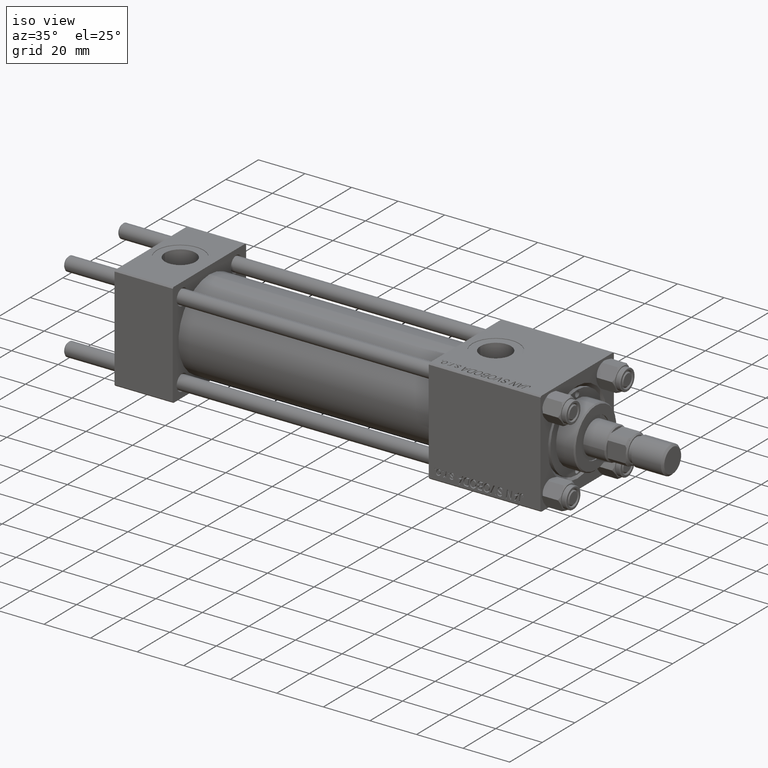
[diagram: clean part render]
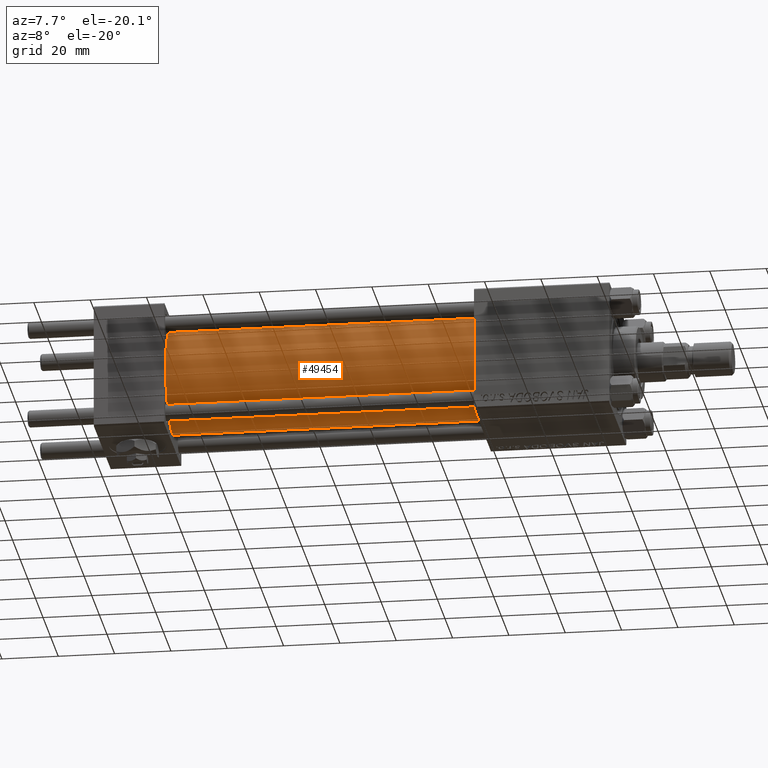
[diagram: tour spotlight — one face highlighted and labeled with its STEP entity id]
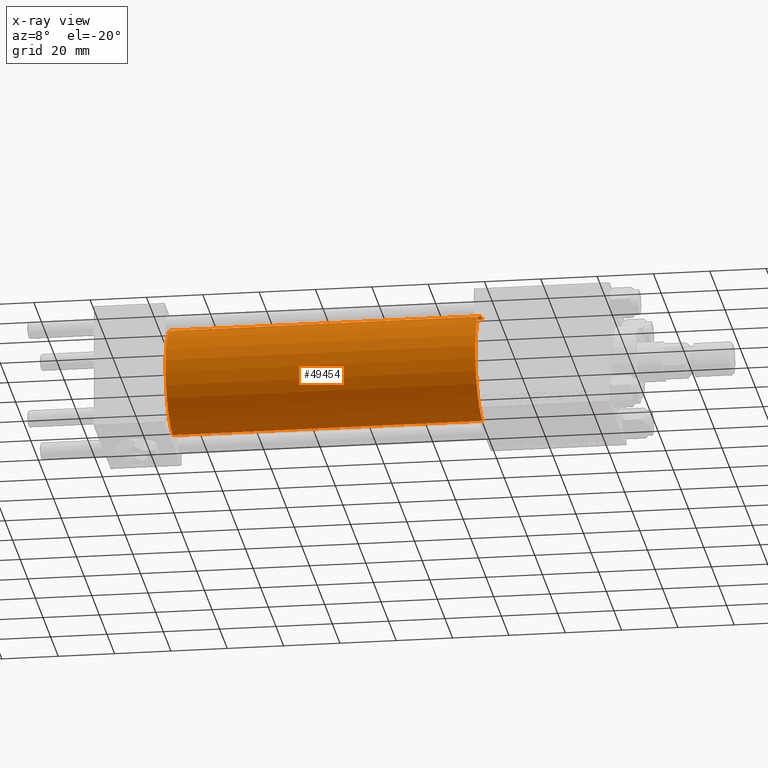
[diagram: x-ray of the same camera — body ghosted, this tour face saturated]
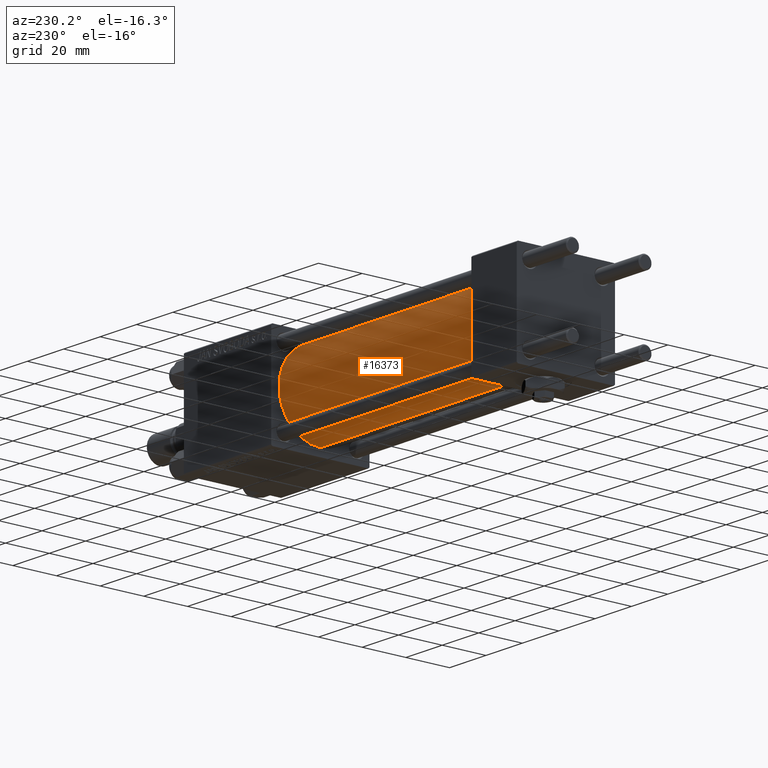
[diagram: tour spotlight — one face highlighted and labeled with its STEP entity id]
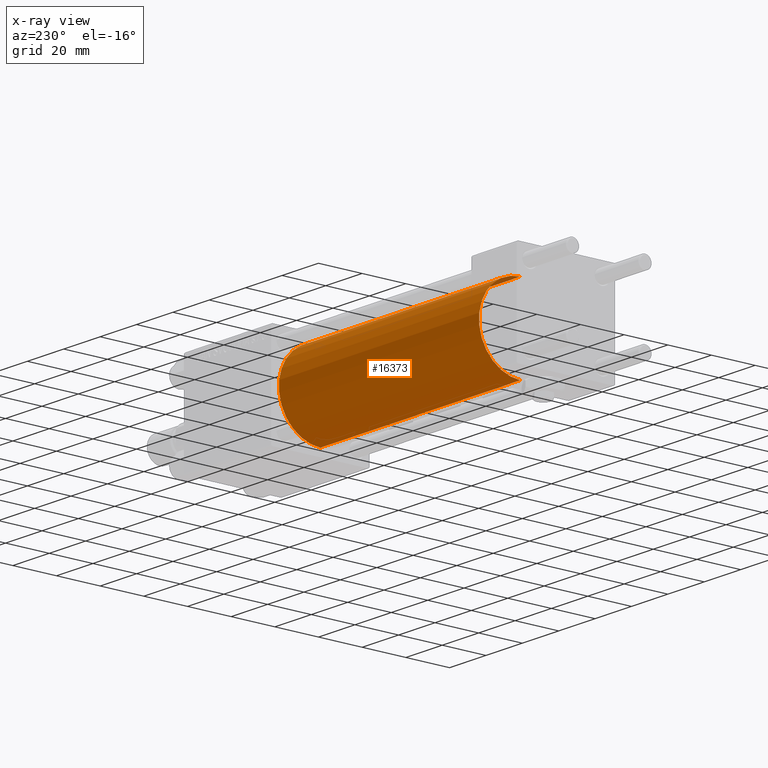
[diagram: x-ray of the same camera — body ghosted, this tour face saturated]
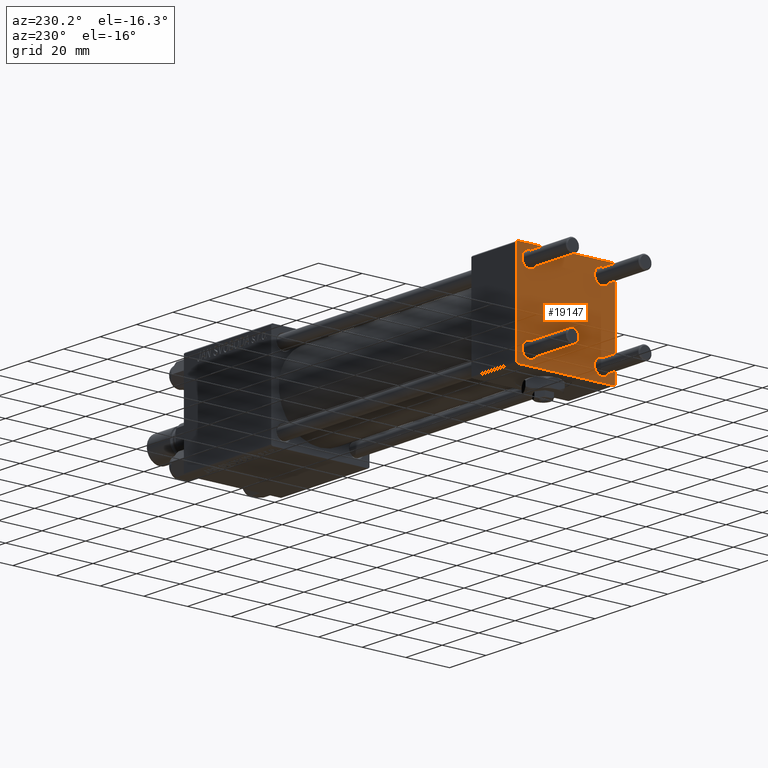
[diagram: tour spotlight — one face highlighted and labeled with its STEP entity id]
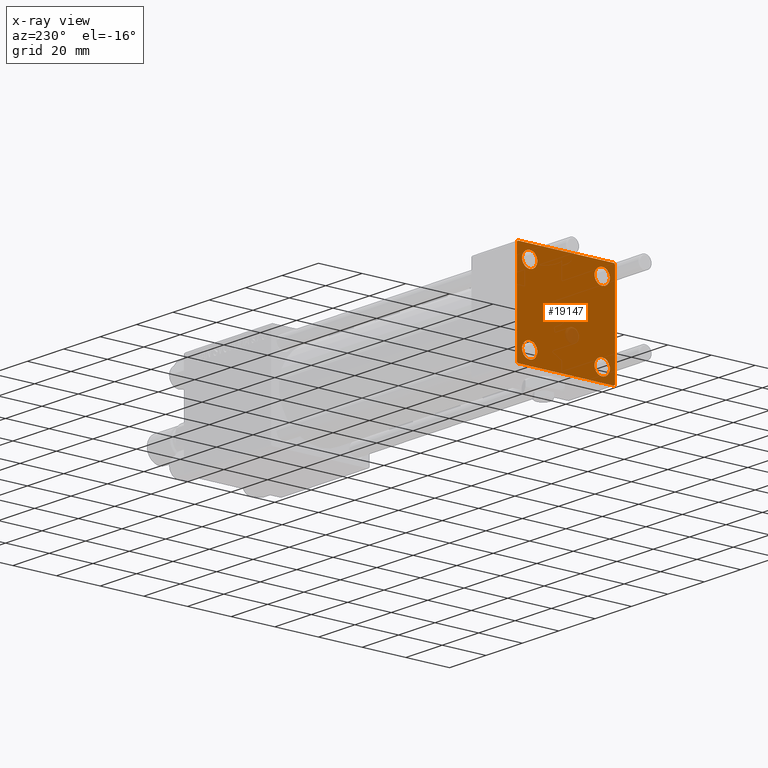
[diagram: x-ray of the same camera — body ghosted, this tour face saturated]
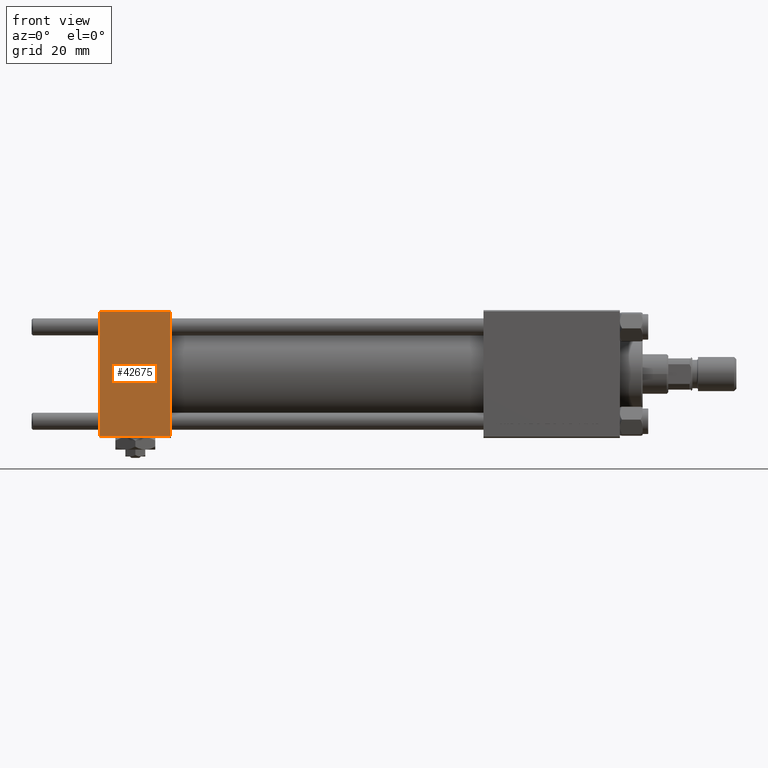
[diagram: tour spotlight — one face highlighted and labeled with its STEP entity id]
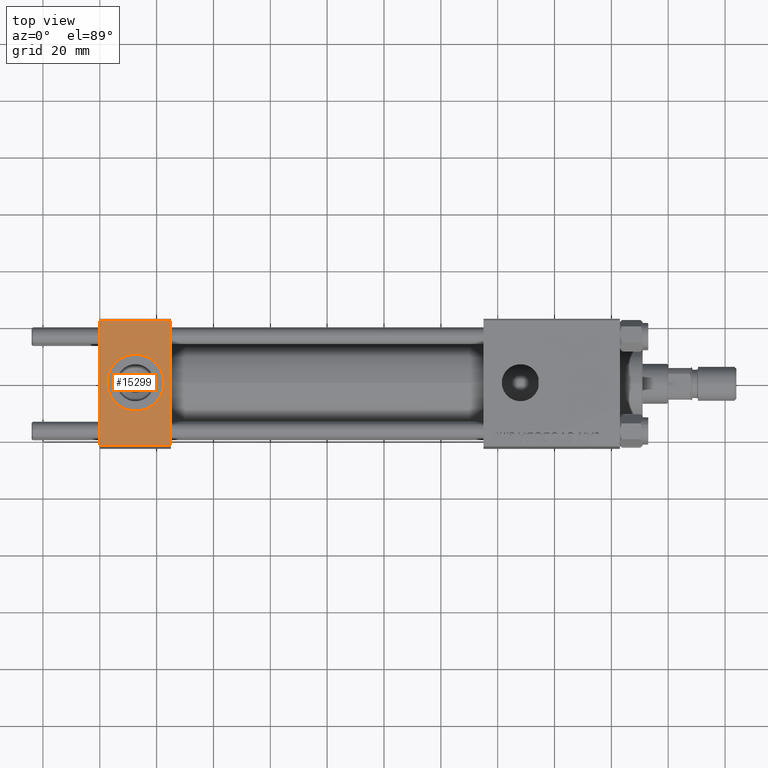
[diagram: tour spotlight — one face highlighted and labeled with its STEP entity id]
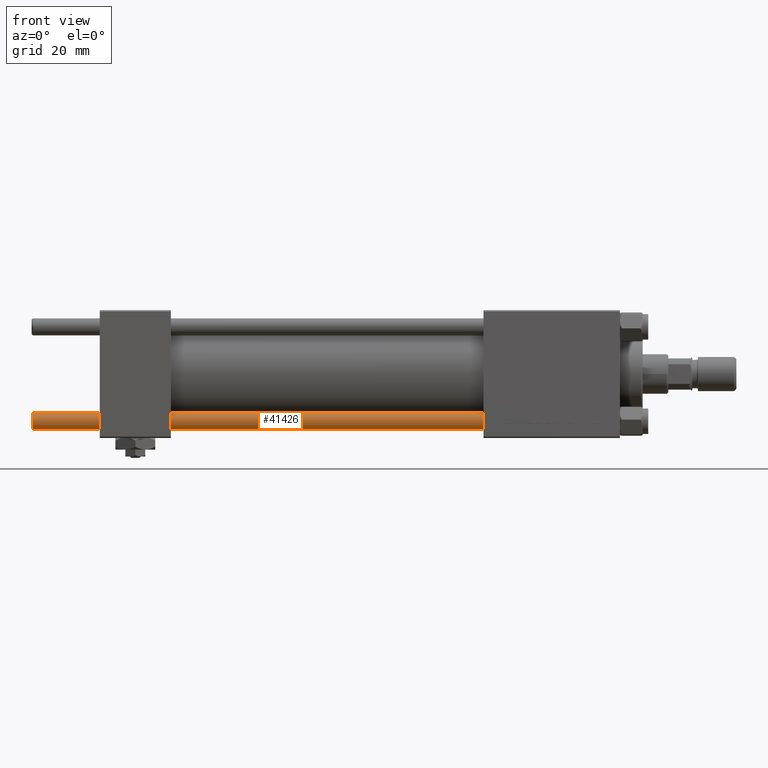
[diagram: tour spotlight — one face highlighted and labeled with its STEP entity id]
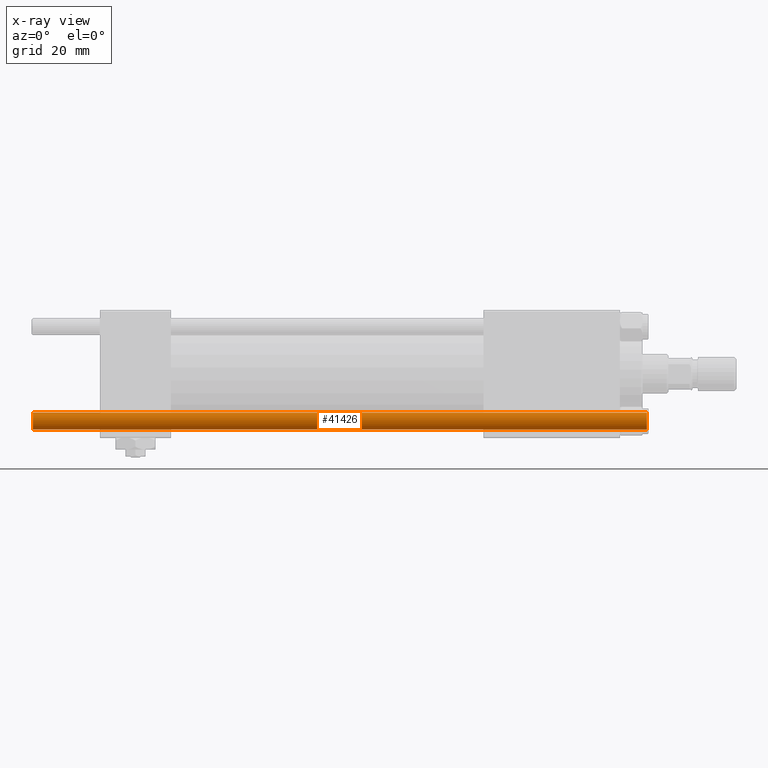
[diagram: x-ray of the same camera — body ghosted, this tour face saturated]
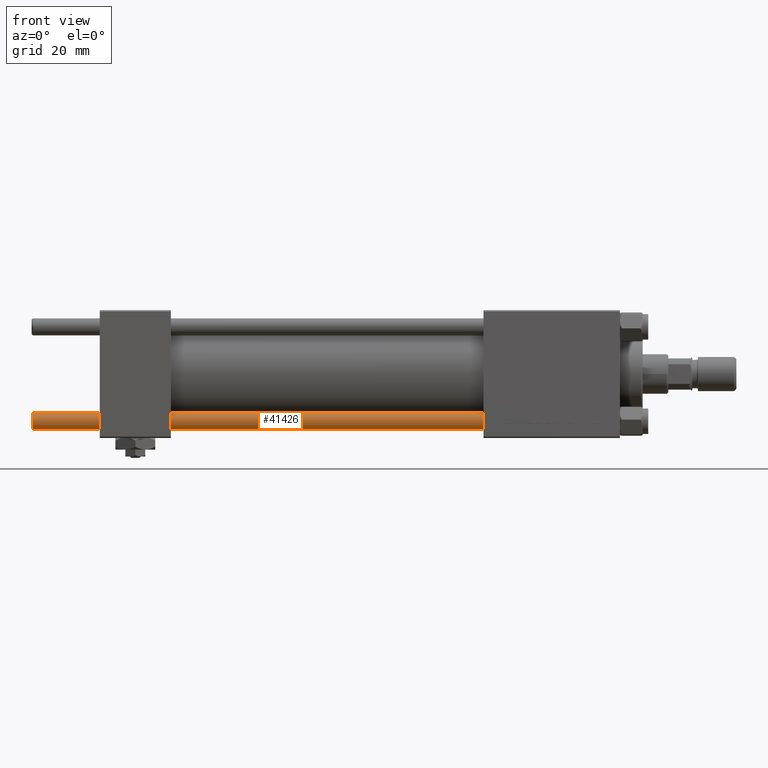
[diagram: tour spotlight — one face highlighted and labeled with its STEP entity id]
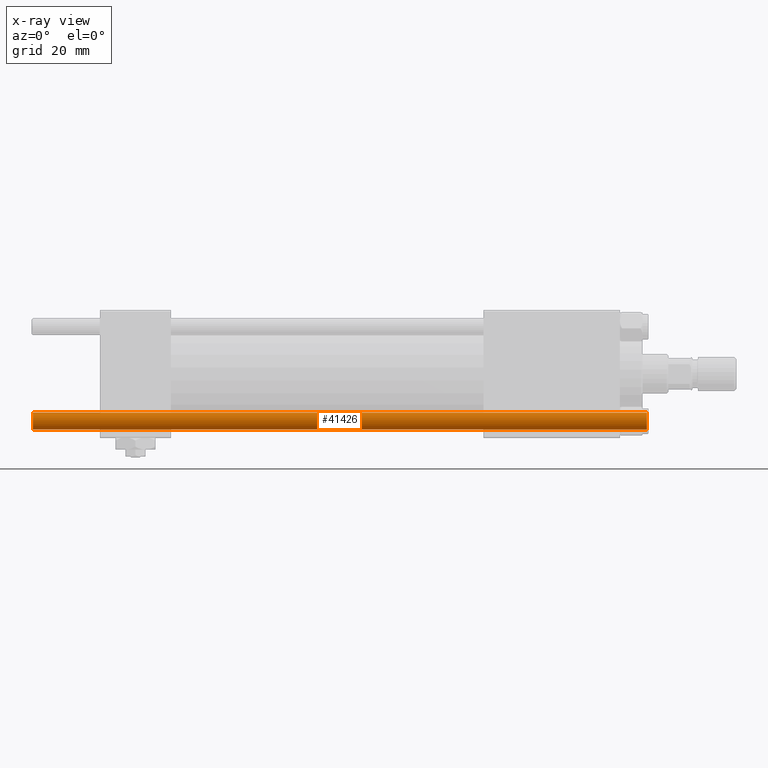
[diagram: x-ray of the same camera — body ghosted, this tour face saturated]
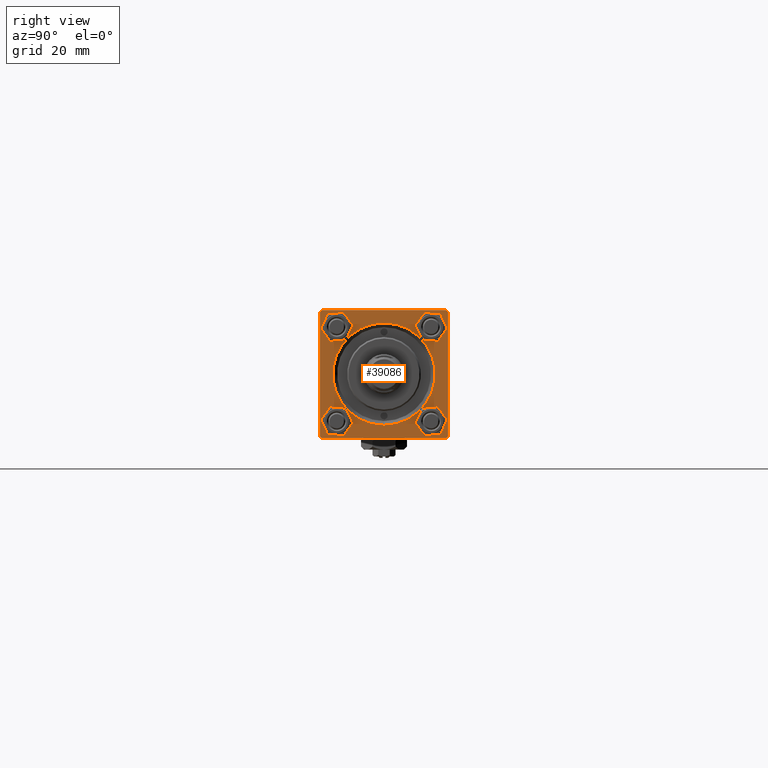
[diagram: tour spotlight — one face highlighted and labeled with its STEP entity id]
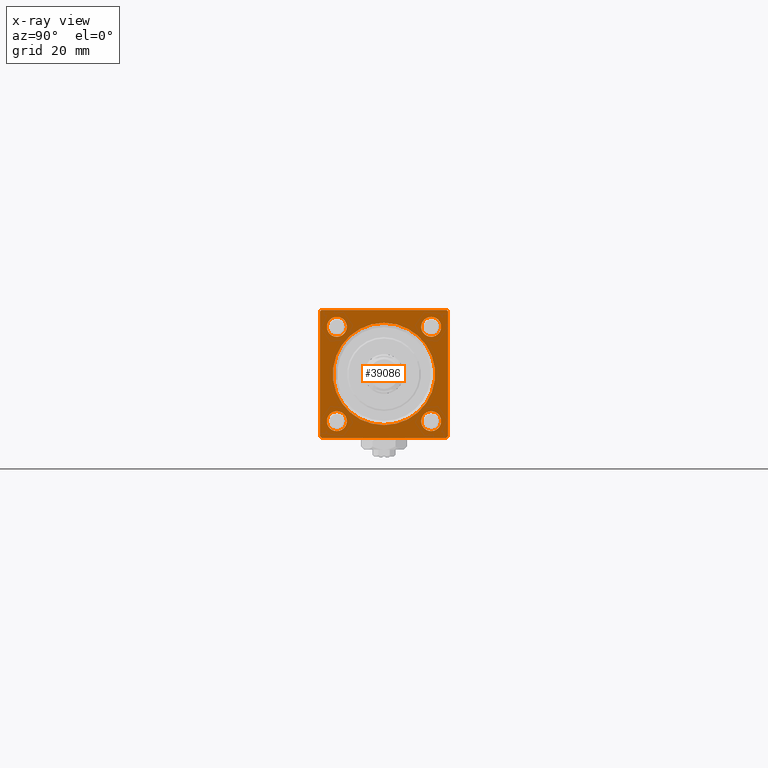
[diagram: x-ray of the same camera — body ghosted, this tour face saturated]
A machine part: a face-by-face anatomy tour. The part has 1204 B-rep faces; the first image is the clean iso view, then the 8 largest visible faces are spotlighted one at a time (largest first), each with its STEP entity span.

Face 1 — auxiliary view, entity #49454. An x-ray twin of the same camera follows (body ghosted, this face saturated) — the face is partly hidden behind the body. In plain terms, the highlighted cylindrical surface (partial cylindrical patch) has radius 19 mm, axis along (-1, -0, -0).
Definition (entity closure, byte-faithful):
#5 = DIRECTION ( 'NONE',  ( -1.000000000000000000, -0.000000000000000000, -0.000000000000000000 ) ) ;
#1421 = AXIS2_PLACEMENT_3D ( 'NONE', #28835, #4253, #7670 ) ;
#1800 = CARTESIAN_POINT ( 'NONE',  ( 24.99999999999999289, 0.000000000000000000, 19.00000000000000000 ) ) ;
#2765 = VECTOR ( 'NONE', #39707, 1000.000000000000000 ) ;
#3180 = DIRECTION ( 'NONE',  ( 1.000000000000000000, 0.000000000000000000, 0.000000000000000000 ) ) ;
#4253 = DIRECTION ( 'NONE',  ( -1.000000000000000000, -0.000000000000000000, -0.000000000000000000 ) ) ;
#7670 = DIRECTION ( 'NONE',  ( 0.000000000000000000, 0.000000000000000000, 1.000000000000000000 ) ) ;
#9911 = CIRCLE ( 'NONE', #33532, 19.00000000000000000 ) ;
#10340 = DIRECTION ( 'NONE',  ( 0.000000000000000000, 0.000000000000000000, 1.000000000000000000 ) ) ;
#11126 = ORIENTED_EDGE ( 'NONE', *, *, #14810, .T. ) ;
#11428 = ORIENTED_EDGE ( 'NONE', *, *, #20443, .T. ) ;
#14398 = VERTEX_POINT ( 'NONE', #26856 ) ;
#14810 = EDGE_CURVE ( 'NONE', #32911, #43458, #9911, .T. ) ;
#15940 = EDGE_LOOP ( 'NONE', ( #30637, #20082, #11428, #11126 ) ) ;
#16633 = CIRCLE ( 'NONE', #23377, 19.00000000000000000 ) ;
#18701 = EDGE_CURVE ( 'NONE', #51549, #43458, #20899, .T. ) ;
#20082 = ORIENTED_EDGE ( 'NONE', *, *, #49342, .F. ) ;
#20443 = EDGE_CURVE ( 'NONE', #14398, #32911, #39453, .T. ) ;
#20899 = LINE ( 'NONE', #44909, #32112 ) ;
#22058 = CARTESIAN_POINT ( 'NONE',  ( 24.99999999999999289, 2.326828918379970970E-15, -19.00000000000000000 ) ) ;
#23377 = AXIS2_PLACEMENT_3D ( 'NONE', #42839, #3180, #46526 ) ;
#26856 = CARTESIAN_POINT ( 'NONE',  ( 135.0000000000000000, 0.000000000000000000, 19.00000000000000000 ) ) ;
#28298 = CYLINDRICAL_SURFACE ( 'NONE', #1421, 19.00000000000000000 ) ;
#28835 = CARTESIAN_POINT ( 'NONE',  ( 135.0000000000000000, 0.000000000000000000, 0.000000000000000000 ) ) ;
#30637 = ORIENTED_EDGE ( 'NONE', *, *, #18701, .F. ) ;
#32112 = VECTOR ( 'NONE', #5, 1000.000000000000000 ) ;
#32911 = VERTEX_POINT ( 'NONE', #1800 ) ;
#33532 = AXIS2_PLACEMENT_3D ( 'NONE', #46521, #47044, #10340 ) ;
#35239 = CARTESIAN_POINT ( 'NONE',  ( 135.0000000000000000, 0.000000000000000000, 19.00000000000000000 ) ) ;
#39453 = LINE ( 'NONE', #35239, #2765 ) ;
#39707 = DIRECTION ( 'NONE',  ( -1.000000000000000000, -0.000000000000000000, -0.000000000000000000 ) ) ;
#42839 = CARTESIAN_POINT ( 'NONE',  ( 135.0000000000000000, 0.000000000000000000, 0.000000000000000000 ) ) ;
#43458 = VERTEX_POINT ( 'NONE', #22058 ) ;
#44909 = CARTESIAN_POINT ( 'NONE',  ( 135.0000000000000000, 2.326828918379970970E-15, -19.00000000000000000 ) ) ;
#44917 = FACE_OUTER_BOUND ( 'NONE', #15940, .T. ) ;
#46521 = CARTESIAN_POINT ( 'NONE',  ( 24.99999999999999289, 0.000000000000000000, 0.000000000000000000 ) ) ;
#46526 = DIRECTION ( 'NONE',  ( 0.000000000000000000, 0.000000000000000000, -1.000000000000000000 ) ) ;
#47044 = DIRECTION ( 'NONE',  ( 1.000000000000000000, -0.000000000000000000, 0.000000000000000000 ) ) ;
#47070 = CARTESIAN_POINT ( 'NONE',  ( 135.0000000000000000, 2.326828918379970970E-15, -19.00000000000000000 ) ) ;
#49342 = EDGE_CURVE ( 'NONE', #14398, #51549, #16633, .T. ) ;
#49454 = ADVANCED_FACE ( 'NONE', ( #44917 ), #28298, .T. ) ;
#51549 = VERTEX_POINT ( 'NONE', #47070 ) ;

Face 2 — auxiliary view, entity #16373. An x-ray twin of the same camera follows (body ghosted, this face saturated) — the face is partly hidden behind the body. In plain terms, the highlighted cylindrical surface (partial cylindrical patch) has radius 19 mm, axis along (-1, -0, -0).
Definition (entity closure, byte-faithful):
#5 = DIRECTION ( 'NONE',  ( -1.000000000000000000, -0.000000000000000000, -0.000000000000000000 ) ) ;
#167 = DIRECTION ( 'NONE',  ( 0.000000000000000000, 0.000000000000000000, 1.000000000000000000 ) ) ;
#891 = ORIENTED_EDGE ( 'NONE', *, *, #24430, .T. ) ;
#1800 = CARTESIAN_POINT ( 'NONE',  ( 24.99999999999999289, 0.000000000000000000, 19.00000000000000000 ) ) ;
#2196 = EDGE_LOOP ( 'NONE', ( #40532, #23985, #891, #50398 ) ) ;
#2765 = VECTOR ( 'NONE', #39707, 1000.000000000000000 ) ;
#4558 = AXIS2_PLACEMENT_3D ( 'NONE', #52059, #51790, #44164 ) ;
#5003 = CARTESIAN_POINT ( 'NONE',  ( 135.0000000000000000, 0.000000000000000000, 0.000000000000000000 ) ) ;
#9469 = DIRECTION ( 'NONE',  ( 0.000000000000000000, 0.000000000000000000, -1.000000000000000000 ) ) ;
#13877 = CIRCLE ( 'NONE', #4558, 19.00000000000000000 ) ;
#14398 = VERTEX_POINT ( 'NONE', #26856 ) ;
#16373 = ADVANCED_FACE ( 'NONE', ( #40596 ), #49296, .T. ) ;
#17408 = DIRECTION ( 'NONE',  ( 1.000000000000000000, 0.000000000000000000, 0.000000000000000000 ) ) ;
#18701 = EDGE_CURVE ( 'NONE', #51549, #43458, #20899, .T. ) ;
#20443 = EDGE_CURVE ( 'NONE', #14398, #32911, #39453, .T. ) ;
#20899 = LINE ( 'NONE', #44909, #32112 ) ;
#20915 = AXIS2_PLACEMENT_3D ( 'NONE', #33212, #44824, #167 ) ;
#22058 = CARTESIAN_POINT ( 'NONE',  ( 24.99999999999999289, 2.326828918379970970E-15, -19.00000000000000000 ) ) ;
#23325 = CIRCLE ( 'NONE', #30097, 19.00000000000000000 ) ;
#23985 = ORIENTED_EDGE ( 'NONE', *, *, #18701, .T. ) ;
#24430 = EDGE_CURVE ( 'NONE', #43458, #32911, #13877, .T. ) ;
#26856 = CARTESIAN_POINT ( 'NONE',  ( 135.0000000000000000, 0.000000000000000000, 19.00000000000000000 ) ) ;
#30097 = AXIS2_PLACEMENT_3D ( 'NONE', #5003, #17408, #9469 ) ;
#32112 = VECTOR ( 'NONE', #5, 1000.000000000000000 ) ;
#32771 = EDGE_CURVE ( 'NONE', #51549, #14398, #23325, .T. ) ;
#32911 = VERTEX_POINT ( 'NONE', #1800 ) ;
#33212 = CARTESIAN_POINT ( 'NONE',  ( 135.0000000000000000, 0.000000000000000000, 0.000000000000000000 ) ) ;
#35239 = CARTESIAN_POINT ( 'NONE',  ( 135.0000000000000000, 0.000000000000000000, 19.00000000000000000 ) ) ;
#39453 = LINE ( 'NONE', #35239, #2765 ) ;
#39707 = DIRECTION ( 'NONE',  ( -1.000000000000000000, -0.000000000000000000, -0.000000000000000000 ) ) ;
#40532 = ORIENTED_EDGE ( 'NONE', *, *, #32771, .F. ) ;
#40596 = FACE_OUTER_BOUND ( 'NONE', #2196, .T. ) ;
#43458 = VERTEX_POINT ( 'NONE', #22058 ) ;
#44164 = DIRECTION ( 'NONE',  ( 0.000000000000000000, 0.000000000000000000, 1.000000000000000000 ) ) ;
#44824 = DIRECTION ( 'NONE',  ( -1.000000000000000000, -0.000000000000000000, -0.000000000000000000 ) ) ;
#44909 = CARTESIAN_POINT ( 'NONE',  ( 135.0000000000000000, 2.326828918379970970E-15, -19.00000000000000000 ) ) ;
#47070 = CARTESIAN_POINT ( 'NONE',  ( 135.0000000000000000, 2.326828918379970970E-15, -19.00000000000000000 ) ) ;
#49296 = CYLINDRICAL_SURFACE ( 'NONE', #20915, 19.00000000000000000 ) ;
#50398 = ORIENTED_EDGE ( 'NONE', *, *, #20443, .F. ) ;
#51549 = VERTEX_POINT ( 'NONE', #47070 ) ;
#51790 = DIRECTION ( 'NONE',  ( 1.000000000000000000, -0.000000000000000000, 0.000000000000000000 ) ) ;
#52059 = CARTESIAN_POINT ( 'NONE',  ( 24.99999999999999289, 0.000000000000000000, 0.000000000000000000 ) ) ;

Face 3 — auxiliary view, entity #19147. An x-ray twin of the same camera follows (body ghosted, this face saturated) — the face is partly hidden behind the body. In plain terms, the highlighted planar face has unit normal (-1, 0, 0).
Definition (entity closure, byte-faithful):
#244 = CIRCLE ( 'NONE', #5309, 3.499999999999996003 ) ;
#1216 = DIRECTION ( 'NONE',  ( 0.000000000000000000, 0.000000000000000000, 1.000000000000000000 ) ) ;
#1702 = AXIS2_PLACEMENT_3D ( 'NONE', #40091, #3904, #8132 ) ;
#1904 = CARTESIAN_POINT ( 'NONE',  ( 0.000000000000000000, -16.59999999999999076, 16.60000000000000853 ) ) ;
#1936 = ORIENTED_EDGE ( 'NONE', *, *, #15412, .T. ) ;
#2641 = LINE ( 'NONE', #14801, #46220 ) ;
#2800 = DIRECTION ( 'NONE',  ( 0.000000000000000000, 0.000000000000000000, 1.000000000000000000 ) ) ;
#2940 = DIRECTION ( 'NONE',  ( 1.000000000000000000, -0.000000000000000000, 0.000000000000000000 ) ) ;
#3127 = CARTESIAN_POINT ( 'NONE',  ( 0.000000000000000000, 21.99999999999999289, 22.50000000000000355 ) ) ;
#3361 = VERTEX_POINT ( 'NONE', #33856 ) ;
#3423 = ORIENTED_EDGE ( 'NONE', *, *, #37138, .T. ) ;
#3685 = CARTESIAN_POINT ( 'NONE',  ( 0.000000000000000000, 22.25000000000014566, -22.24999999999984013 ) ) ;
#3904 = DIRECTION ( 'NONE',  ( -1.000000000000000000, 0.000000000000000000, -0.000000000000000000 ) ) ;
#4317 = DIRECTION ( 'NONE',  ( 0.000000000000000000, -1.000000000000000000, -2.312964634635742957E-16 ) ) ;
#5264 = VERTEX_POINT ( 'NONE', #21138 ) ;
#5309 = AXIS2_PLACEMENT_3D ( 'NONE', #21754, #13032, #21492 ) ;
#6325 = AXIS2_PLACEMENT_3D ( 'NONE', #16095, #20586, #32220 ) ;
#6399 = CARTESIAN_POINT ( 'NONE',  ( 0.000000000000000000, -22.50000000000000000, -21.99999999999997158 ) ) ;
#6442 = CARTESIAN_POINT ( 'NONE',  ( 0.000000000000000000, -21.99999999999997868, 22.50000000000000000 ) ) ;
#6720 = CARTESIAN_POINT ( 'NONE',  ( 0.000000000000000000, 16.59999999999999787, 16.60000000000000497 ) ) ;
#7099 = VECTOR ( 'NONE', #7446, 1000.000000000000000 ) ;
#7132 = AXIS2_PLACEMENT_3D ( 'NONE', #44615, #48562, #20857 ) ;
#7446 = DIRECTION ( 'NONE',  ( 0.000000000000000000, 0.000000000000000000, -1.000000000000000000 ) ) ;
#7799 = CARTESIAN_POINT ( 'NONE',  ( 0.000000000000000000, -16.59999999999999076, -16.60000000000000853 ) ) ;
#8132 = DIRECTION ( 'NONE',  ( -0.000000000000000000, 0.000000000000000000, 1.000000000000000000 ) ) ;
#8652 = VERTEX_POINT ( 'NONE', #44927 ) ;
#8843 = VERTEX_POINT ( 'NONE', #3127 ) ;
#8848 = VERTEX_POINT ( 'NONE', #34610 ) ;
#8865 = DIRECTION ( 'NONE',  ( 0.000000000000000000, -0.7071067811865426878, 0.7071067811865524577 ) ) ;
#9188 = CARTESIAN_POINT ( 'NONE',  ( 0.000000000000000000, 16.59999999999999787, -20.10000000000000142 ) ) ;
#9735 = EDGE_CURVE ( 'NONE', #5264, #15468, #49353, .T. ) ;
#9738 = EDGE_CURVE ( 'NONE', #16521, #9961, #16436, .T. ) ;
#9961 = VERTEX_POINT ( 'NONE', #9188 ) ;
#10067 = VERTEX_POINT ( 'NONE', #6442 ) ;
#12094 = FACE_BOUND ( 'NONE', #16932, .T. ) ;
#12192 = EDGE_CURVE ( 'NONE', #30777, #13025, #43534, .T. ) ;
#12620 = VERTEX_POINT ( 'NONE', #6399 ) ;
#13025 = VERTEX_POINT ( 'NONE', #27739 ) ;
#13032 = DIRECTION ( 'NONE',  ( 1.000000000000000000, -0.000000000000000000, 0.000000000000000000 ) ) ;
#13088 = AXIS2_PLACEMENT_3D ( 'NONE', #28558, #49385, #13213 ) ;
#13213 = DIRECTION ( 'NONE',  ( 0.000000000000000000, 0.000000000000000000, 1.000000000000000000 ) ) ;
#13226 = EDGE_CURVE ( 'NONE', #8843, #8652, #15715, .T. ) ;
#14801 = CARTESIAN_POINT ( 'NONE',  ( -0.000000000000000000, -22.24999999999984013, 22.25000000000015277 ) ) ;
#15412 = EDGE_CURVE ( 'NONE', #3361, #12620, #33181, .T. ) ;
#15456 = EDGE_LOOP ( 'NONE', ( #34397, #25702, #32618, #1936, #22169, #22629, #16200, #30454 ) ) ;
#15468 = VERTEX_POINT ( 'NONE', #46344 ) ;
#15629 = VECTOR ( 'NONE', #47334, 1000.000000000000000 ) ;
#15715 = LINE ( 'NONE', #15982, #40213 ) ;
#15958 = EDGE_CURVE ( 'NONE', #48726, #10067, #2641, .T. ) ;
#15982 = CARTESIAN_POINT ( 'NONE',  ( 0.000000000000000000, 22.24999999999999645, 22.24999999999999645 ) ) ;
#15989 = ORIENTED_EDGE ( 'NONE', *, *, #12192, .T. ) ;
#16086 = EDGE_CURVE ( 'NONE', #8652, #8848, #48055, .T. ) ;
#16095 = CARTESIAN_POINT ( 'NONE',  ( 0.000000000000000000, 16.59999999999999787, -16.60000000000000497 ) ) ;
#16109 = ORIENTED_EDGE ( 'NONE', *, *, #9738, .T. ) ;
#16200 = ORIENTED_EDGE ( 'NONE', *, *, #27647, .F. ) ;
#16436 = CIRCLE ( 'NONE', #6325, 3.499999999999996003 ) ;
#16521 = VERTEX_POINT ( 'NONE', #26572 ) ;
#16527 = CARTESIAN_POINT ( 'NONE',  ( 0.000000000000000000, -22.25000000000014566, -22.24999999999984013 ) ) ;
#16594 = FACE_BOUND ( 'NONE', #18984, .T. ) ;
#16730 = CARTESIAN_POINT ( 'NONE',  ( 0.000000000000000000, -16.59999999999999076, -20.10000000000000497 ) ) ;
#16771 = DIRECTION ( 'NONE',  ( 0.000000000000000000, 0.7071067811865474617, -0.7071067811865474617 ) ) ;
#16932 = EDGE_LOOP ( 'NONE', ( #51807, #51673 ) ) ;
#18330 = EDGE_CURVE ( 'NONE', #8848, #23022, #27752, .T. ) ;
#18984 = EDGE_LOOP ( 'NONE', ( #16109, #49725 ) ) ;
#19068 = DIRECTION ( 'NONE',  ( 0.000000000000000000, 0.000000000000000000, 1.000000000000000000 ) ) ;
#19147 = ADVANCED_FACE ( 'NONE', ( #12094, #44592, #16594, #27966, #44053 ), #23991, .T. ) ;
#19605 = CARTESIAN_POINT ( 'NONE',  ( 0.000000000000000000, -22.50000000000000000, 22.50000000000000000 ) ) ;
#20089 = CIRCLE ( 'NONE', #34425, 3.499999999999996003 ) ;
#20162 = ORIENTED_EDGE ( 'NONE', *, *, #45720, .T. ) ;
#20431 = CARTESIAN_POINT ( 'NONE',  ( 0.000000000000000000, 22.50000000000000000, -22.49999999999999645 ) ) ;
#20586 = DIRECTION ( 'NONE',  ( 1.000000000000000000, -0.000000000000000000, 0.000000000000000000 ) ) ;
#20729 = EDGE_CURVE ( 'NONE', #9961, #16521, #244, .T. ) ;
#20857 = DIRECTION ( 'NONE',  ( 0.000000000000000000, 0.000000000000000000, 1.000000000000000000 ) ) ;
#21070 = DIRECTION ( 'NONE',  ( 1.000000000000000000, -0.000000000000000000, 0.000000000000000000 ) ) ;
#21138 = CARTESIAN_POINT ( 'NONE',  ( 0.000000000000000000, -16.59999999999999076, 13.10000000000001030 ) ) ;
#21492 = DIRECTION ( 'NONE',  ( 0.000000000000000000, 0.000000000000000000, 1.000000000000000000 ) ) ;
#21754 = CARTESIAN_POINT ( 'NONE',  ( 0.000000000000000000, 16.59999999999999787, -16.60000000000000497 ) ) ;
#22169 = ORIENTED_EDGE ( 'NONE', *, *, #24388, .F. ) ;
#22629 = ORIENTED_EDGE ( 'NONE', *, *, #15958, .T. ) ;
#23022 = VERTEX_POINT ( 'NONE', #26872 ) ;
#23439 = AXIS2_PLACEMENT_3D ( 'NONE', #1904, #2940, #19068 ) ;
#23929 = DIRECTION ( 'NONE',  ( 1.000000000000000000, -0.000000000000000000, 0.000000000000000000 ) ) ;
#23991 = PLANE ( 'NONE',  #1702 ) ;
#24057 = EDGE_LOOP ( 'NONE', ( #20162, #44773 ) ) ;
#24388 = EDGE_CURVE ( 'NONE', #48726, #12620, #31517, .T. ) ;
#25197 = VECTOR ( 'NONE', #4317, 1000.000000000000000 ) ;
#25702 = ORIENTED_EDGE ( 'NONE', *, *, #18330, .T. ) ;
#25730 = EDGE_CURVE ( 'NONE', #48945, #44732, #46809, .T. ) ;
#26250 = CARTESIAN_POINT ( 'NONE',  ( 0.000000000000000000, 22.50000000000000000, 22.50000000000000355 ) ) ;
#26572 = CARTESIAN_POINT ( 'NONE',  ( 0.000000000000000000, 16.59999999999999787, -13.10000000000000675 ) ) ;
#26588 = EDGE_LOOP ( 'NONE', ( #3423, #15989 ) ) ;
#26872 = CARTESIAN_POINT ( 'NONE',  ( 0.000000000000000000, 21.99999999999999289, -22.49999999999999645 ) ) ;
#27371 = CARTESIAN_POINT ( 'NONE',  ( 0.000000000000000000, -16.59999999999999076, -13.10000000000001030 ) ) ;
#27647 = EDGE_CURVE ( 'NONE', #8843, #10067, #47084, .T. ) ;
#27739 = CARTESIAN_POINT ( 'NONE',  ( 0.000000000000000000, 16.59999999999999787, 20.10000000000000142 ) ) ;
#27752 = LINE ( 'NONE', #3685, #28596 ) ;
#27852 = AXIS2_PLACEMENT_3D ( 'NONE', #7799, #23929, #2800 ) ;
#27966 = FACE_BOUND ( 'NONE', #26588, .T. ) ;
#28558 = CARTESIAN_POINT ( 'NONE',  ( 0.000000000000000000, -16.59999999999999076, -16.60000000000000853 ) ) ;
#28596 = VECTOR ( 'NONE', #36204, 1000.000000000000000 ) ;
#29445 = DIRECTION ( 'NONE',  ( -0.000000000000000000, 0.7071067811865525687, 0.7071067811865425767 ) ) ;
#30454 = ORIENTED_EDGE ( 'NONE', *, *, #13226, .T. ) ;
#30777 = VERTEX_POINT ( 'NONE', #47711 ) ;
#30844 = LINE ( 'NONE', #20431, #25197 ) ;
#31517 = LINE ( 'NONE', #19605, #7099 ) ;
#32220 = DIRECTION ( 'NONE',  ( 0.000000000000000000, 0.000000000000000000, 1.000000000000000000 ) ) ;
#32618 = ORIENTED_EDGE ( 'NONE', *, *, #38371, .T. ) ;
#33181 = LINE ( 'NONE', #16527, #51242 ) ;
#33856 = CARTESIAN_POINT ( 'NONE',  ( 0.000000000000000000, -21.99999999999997158, -22.50000000000000711 ) ) ;
#34224 = DIRECTION ( 'NONE',  ( 1.000000000000000000, -0.000000000000000000, 0.000000000000000000 ) ) ;
#34397 = ORIENTED_EDGE ( 'NONE', *, *, #16086, .T. ) ;
#34425 = AXIS2_PLACEMENT_3D ( 'NONE', #44822, #21070, #1216 ) ;
#34610 = CARTESIAN_POINT ( 'NONE',  ( 0.000000000000000000, 22.50000000000000000, -21.99999999999996803 ) ) ;
#35639 = CARTESIAN_POINT ( 'NONE',  ( 0.000000000000000000, 22.50000000000000000, 22.50000000000000355 ) ) ;
#35686 = EDGE_CURVE ( 'NONE', #15468, #5264, #46212, .T. ) ;
#35968 = AXIS2_PLACEMENT_3D ( 'NONE', #6720, #34224, #51073 ) ;
#36204 = DIRECTION ( 'NONE',  ( -0.000000000000000000, -0.7071067811865426878, -0.7071067811865524577 ) ) ;
#36941 = CARTESIAN_POINT ( 'NONE',  ( 0.000000000000000000, -22.50000000000000000, 22.00000000000000000 ) ) ;
#37138 = EDGE_CURVE ( 'NONE', #13025, #30777, #20089, .T. ) ;
#37146 = CIRCLE ( 'NONE', #27852, 3.499999999999996003 ) ;
#38371 = EDGE_CURVE ( 'NONE', #23022, #3361, #30844, .T. ) ;
#40091 = CARTESIAN_POINT ( 'NONE',  ( 0.000000000000000000, 0.000000000000000000, 0.000000000000000000 ) ) ;
#40213 = VECTOR ( 'NONE', #16771, 1000.000000000000114 ) ;
#43534 = CIRCLE ( 'NONE', #35968, 3.499999999999996003 ) ;
#44053 = FACE_OUTER_BOUND ( 'NONE', #15456, .T. ) ;
#44592 = FACE_BOUND ( 'NONE', #24057, .T. ) ;
#44615 = CARTESIAN_POINT ( 'NONE',  ( 0.000000000000000000, -16.59999999999999076, 16.60000000000000853 ) ) ;
#44732 = VERTEX_POINT ( 'NONE', #27371 ) ;
#44773 = ORIENTED_EDGE ( 'NONE', *, *, #25730, .T. ) ;
#44822 = CARTESIAN_POINT ( 'NONE',  ( 0.000000000000000000, 16.59999999999999787, 16.60000000000000497 ) ) ;
#44927 = CARTESIAN_POINT ( 'NONE',  ( 0.000000000000000000, 22.50000000000000000, 21.99999999999999645 ) ) ;
#45365 = VECTOR ( 'NONE', #47783, 1000.000000000000000 ) ;
#45720 = EDGE_CURVE ( 'NONE', #44732, #48945, #37146, .T. ) ;
#46212 = CIRCLE ( 'NONE', #23439, 3.499999999999996003 ) ;
#46220 = VECTOR ( 'NONE', #29445, 999.9999999999998863 ) ;
#46344 = CARTESIAN_POINT ( 'NONE',  ( 0.000000000000000000, -16.59999999999999076, 20.10000000000000853 ) ) ;
#46809 = CIRCLE ( 'NONE', #13088, 3.499999999999996003 ) ;
#47084 = LINE ( 'NONE', #26250, #15629 ) ;
#47334 = DIRECTION ( 'NONE',  ( 0.000000000000000000, -1.000000000000000000, -7.709882115452476934E-17 ) ) ;
#47711 = CARTESIAN_POINT ( 'NONE',  ( 0.000000000000000000, 16.59999999999999787, 13.10000000000000675 ) ) ;
#47783 = DIRECTION ( 'NONE',  ( 0.000000000000000000, 0.000000000000000000, -1.000000000000000000 ) ) ;
#48055 = LINE ( 'NONE', #35639, #45365 ) ;
#48562 = DIRECTION ( 'NONE',  ( 1.000000000000000000, -0.000000000000000000, 0.000000000000000000 ) ) ;
#48726 = VERTEX_POINT ( 'NONE', #36941 ) ;
#48945 = VERTEX_POINT ( 'NONE', #16730 ) ;
#49353 = CIRCLE ( 'NONE', #7132, 3.499999999999996003 ) ;
#49385 = DIRECTION ( 'NONE',  ( 1.000000000000000000, -0.000000000000000000, 0.000000000000000000 ) ) ;
#49725 = ORIENTED_EDGE ( 'NONE', *, *, #20729, .T. ) ;
#51073 = DIRECTION ( 'NONE',  ( 0.000000000000000000, 0.000000000000000000, 1.000000000000000000 ) ) ;
#51242 = VECTOR ( 'NONE', #8865, 1000.000000000000000 ) ;
#51673 = ORIENTED_EDGE ( 'NONE', *, *, #9735, .T. ) ;
#51807 = ORIENTED_EDGE ( 'NONE', *, *, #35686, .T. ) ;

Face 4 — front view, entity #42675. In plain terms, the highlighted planar face has unit normal (0, 1, 0).
Definition (entity closure, byte-faithful):
#348 = ORIENTED_EDGE ( 'NONE', *, *, #29473, .F. ) ;
#1285 = ORIENTED_EDGE ( 'NONE', *, *, #17758, .T. ) ;
#1953 = VERTEX_POINT ( 'NONE', #25839 ) ;
#4607 = DIRECTION ( 'NONE',  ( -1.000000000000000000, 0.000000000000000000, 0.000000000000000000 ) ) ;
#6399 = CARTESIAN_POINT ( 'NONE',  ( 0.000000000000000000, -22.50000000000000000, -21.99999999999997158 ) ) ;
#7099 = VECTOR ( 'NONE', #7446, 1000.000000000000000 ) ;
#7446 = DIRECTION ( 'NONE',  ( 0.000000000000000000, 0.000000000000000000, -1.000000000000000000 ) ) ;
#7458 = DIRECTION ( 'NONE',  ( -0.000000000000000000, 1.000000000000000000, 0.000000000000000000 ) ) ;
#8321 = VECTOR ( 'NONE', #43195, 1000.000000000000000 ) ;
#8640 = VERTEX_POINT ( 'NONE', #28844 ) ;
#10552 = VECTOR ( 'NONE', #40947, 1000.000000000000000 ) ;
#12620 = VERTEX_POINT ( 'NONE', #6399 ) ;
#14734 = VECTOR ( 'NONE', #4607, 1000.000000000000000 ) ;
#15972 = AXIS2_PLACEMENT_3D ( 'NONE', #28625, #7458, #28081 ) ;
#16230 = LINE ( 'NONE', #19935, #14734 ) ;
#16649 = LINE ( 'NONE', #28282, #10552 ) ;
#17758 = EDGE_CURVE ( 'NONE', #12620, #1953, #23389, .T. ) ;
#19605 = CARTESIAN_POINT ( 'NONE',  ( 0.000000000000000000, -22.50000000000000000, 22.50000000000000000 ) ) ;
#19935 = CARTESIAN_POINT ( 'NONE',  ( 25.00000000000000000, -22.50000000000000000, 22.00000000000000000 ) ) ;
#23389 = LINE ( 'NONE', #51597, #8321 ) ;
#24388 = EDGE_CURVE ( 'NONE', #48726, #12620, #31517, .T. ) ;
#25185 = ORIENTED_EDGE ( 'NONE', *, *, #24388, .T. ) ;
#25839 = CARTESIAN_POINT ( 'NONE',  ( 25.00000000000000000, -22.50000000000000000, -21.99999999999997158 ) ) ;
#26524 = FACE_OUTER_BOUND ( 'NONE', #46124, .T. ) ;
#28081 = DIRECTION ( 'NONE',  ( 0.000000000000000000, -0.000000000000000000, 1.000000000000000000 ) ) ;
#28252 = EDGE_CURVE ( 'NONE', #8640, #48726, #16230, .T. ) ;
#28282 = CARTESIAN_POINT ( 'NONE',  ( 25.00000000000000000, -22.50000000000000000, 22.50000000000000000 ) ) ;
#28625 = CARTESIAN_POINT ( 'NONE',  ( 25.00000000000000000, -22.50000000000000000, 22.50000000000000000 ) ) ;
#28844 = CARTESIAN_POINT ( 'NONE',  ( 25.00000000000000000, -22.50000000000000000, 22.00000000000000000 ) ) ;
#29473 = EDGE_CURVE ( 'NONE', #8640, #1953, #16649, .T. ) ;
#31517 = LINE ( 'NONE', #19605, #7099 ) ;
#35732 = PLANE ( 'NONE',  #15972 ) ;
#36941 = CARTESIAN_POINT ( 'NONE',  ( 0.000000000000000000, -22.50000000000000000, 22.00000000000000000 ) ) ;
#40947 = DIRECTION ( 'NONE',  ( 0.000000000000000000, 0.000000000000000000, -1.000000000000000000 ) ) ;
#42675 = ADVANCED_FACE ( 'NONE', ( #26524 ), #35732, .F. ) ;
#43195 = DIRECTION ( 'NONE',  ( 1.000000000000000000, 0.000000000000000000, 0.000000000000000000 ) ) ;
#45516 = ORIENTED_EDGE ( 'NONE', *, *, #28252, .T. ) ;
#46124 = EDGE_LOOP ( 'NONE', ( #25185, #1285, #348, #45516 ) ) ;
#48726 = VERTEX_POINT ( 'NONE', #36941 ) ;
#51597 = CARTESIAN_POINT ( 'NONE',  ( 25.00000000000000000, -22.50000000000000000, -21.99999999999998579 ) ) ;

Face 5 — top view, entity #15299. In plain terms, the highlighted planar face has unit normal (0, 0, -1).
Definition (entity closure, byte-faithful):
#413 = CARTESIAN_POINT ( 'NONE',  ( 0.000000000000000000, 21.99999999999999289, 22.50000000000000355 ) ) ;
#760 = CARTESIAN_POINT ( 'NONE',  ( 25.00000000000000000, 21.99999999999999289, 22.50000000000000355 ) ) ;
#1641 = AXIS2_PLACEMENT_3D ( 'NONE', #8283, #3782, #28651 ) ;
#3127 = CARTESIAN_POINT ( 'NONE',  ( 0.000000000000000000, 21.99999999999999289, 22.50000000000000355 ) ) ;
#3559 = CARTESIAN_POINT ( 'NONE',  ( 25.00000000000000000, 22.50000000000000000, 22.50000000000000355 ) ) ;
#3573 = LINE ( 'NONE', #413, #15676 ) ;
#3782 = DIRECTION ( 'NONE',  ( 0.000000000000000000, 0.000000000000000000, 1.000000000000000000 ) ) ;
#3968 = EDGE_LOOP ( 'NONE', ( #5017, #5194 ) ) ;
#5017 = ORIENTED_EDGE ( 'NONE', *, *, #39730, .F. ) ;
#5194 = ORIENTED_EDGE ( 'NONE', *, *, #16663, .F. ) ;
#6442 = CARTESIAN_POINT ( 'NONE',  ( 0.000000000000000000, -21.99999999999997868, 22.50000000000000000 ) ) ;
#6454 = CARTESIAN_POINT ( 'NONE',  ( 25.00000000000000000, -21.99999999999999289, 22.50000000000000000 ) ) ;
#8283 = CARTESIAN_POINT ( 'NONE',  ( 12.50000000000000000, -1.734723475976807094E-15, 22.50000000000000000 ) ) ;
#8337 = DIRECTION ( 'NONE',  ( 0.000000000000000000, -1.000000000000000000, -7.709882115452476934E-17 ) ) ;
#8843 = VERTEX_POINT ( 'NONE', #3127 ) ;
#10067 = VERTEX_POINT ( 'NONE', #6442 ) ;
#11169 = EDGE_CURVE ( 'NONE', #11771, #8843, #3573, .T. ) ;
#11771 = VERTEX_POINT ( 'NONE', #760 ) ;
#13929 = PLANE ( 'NONE',  #50349 ) ;
#15299 = ADVANCED_FACE ( 'NONE', ( #50350, #26605 ), #13929, .F. ) ;
#15629 = VECTOR ( 'NONE', #47334, 1000.000000000000000 ) ;
#15676 = VECTOR ( 'NONE', #51628, 1000.000000000000000 ) ;
#16282 = EDGE_LOOP ( 'NONE', ( #17001, #48097, #39323, #45809 ) ) ;
#16663 = EDGE_CURVE ( 'NONE', #25195, #51297, #43709, .T. ) ;
#17001 = ORIENTED_EDGE ( 'NONE', *, *, #27647, .T. ) ;
#17683 = VECTOR ( 'NONE', #22594, 1000.000000000000000 ) ;
#22594 = DIRECTION ( 'NONE',  ( 1.000000000000000000, 0.000000000000000000, 0.000000000000000000 ) ) ;
#23380 = CARTESIAN_POINT ( 'NONE',  ( 12.50000000000000000, -1.734723475976807094E-15, 22.50000000000000000 ) ) ;
#25195 = VERTEX_POINT ( 'NONE', #34958 ) ;
#26250 = CARTESIAN_POINT ( 'NONE',  ( 0.000000000000000000, 22.50000000000000000, 22.50000000000000355 ) ) ;
#26296 = LINE ( 'NONE', #6454, #17683 ) ;
#26605 = FACE_OUTER_BOUND ( 'NONE', #16282, .T. ) ;
#27647 = EDGE_CURVE ( 'NONE', #8843, #10067, #47084, .T. ) ;
#28651 = DIRECTION ( 'NONE',  ( 1.000000000000000000, 0.000000000000000000, 0.000000000000000000 ) ) ;
#29507 = CIRCLE ( 'NONE', #1641, 9.999999999999998224 ) ;
#30060 = CARTESIAN_POINT ( 'NONE',  ( 25.00000000000000000, 22.50000000000000000, 22.50000000000000355 ) ) ;
#31084 = AXIS2_PLACEMENT_3D ( 'NONE', #23380, #35010, #31577 ) ;
#31103 = DIRECTION ( 'NONE',  ( 0.000000000000000000, 7.709882115452476934E-17, -1.000000000000000000 ) ) ;
#31577 = DIRECTION ( 'NONE',  ( 1.000000000000000000, 0.000000000000000000, 0.000000000000000000 ) ) ;
#32091 = CARTESIAN_POINT ( 'NONE',  ( 22.50000000000000000, -1.734723475976807094E-15, 22.50000000000000000 ) ) ;
#32130 = LINE ( 'NONE', #3559, #36231 ) ;
#34958 = CARTESIAN_POINT ( 'NONE',  ( 2.500000000000003997, -5.100766768294543310E-16, 22.50000000000000000 ) ) ;
#35010 = DIRECTION ( 'NONE',  ( 0.000000000000000000, 0.000000000000000000, 1.000000000000000000 ) ) ;
#36231 = VECTOR ( 'NONE', #8337, 1000.000000000000000 ) ;
#39323 = ORIENTED_EDGE ( 'NONE', *, *, #43368, .F. ) ;
#39510 = VERTEX_POINT ( 'NONE', #50297 ) ;
#39551 = EDGE_CURVE ( 'NONE', #10067, #39510, #26296, .T. ) ;
#39730 = EDGE_CURVE ( 'NONE', #51297, #25195, #29507, .T. ) ;
#43368 = EDGE_CURVE ( 'NONE', #11771, #39510, #32130, .T. ) ;
#43709 = CIRCLE ( 'NONE', #31084, 9.999999999999998224 ) ;
#45809 = ORIENTED_EDGE ( 'NONE', *, *, #11169, .T. ) ;
#46915 = DIRECTION ( 'NONE',  ( 0.000000000000000000, 1.000000000000000000, 7.709882115452476934E-17 ) ) ;
#47084 = LINE ( 'NONE', #26250, #15629 ) ;
#47334 = DIRECTION ( 'NONE',  ( 0.000000000000000000, -1.000000000000000000, -7.709882115452476934E-17 ) ) ;
#48097 = ORIENTED_EDGE ( 'NONE', *, *, #39551, .T. ) ;
#50297 = CARTESIAN_POINT ( 'NONE',  ( 25.00000000000000000, -21.99999999999997868, 22.50000000000000000 ) ) ;
#50349 = AXIS2_PLACEMENT_3D ( 'NONE', #30060, #31103, #46915 ) ;
#50350 = FACE_BOUND ( 'NONE', #3968, .T. ) ;
#51297 = VERTEX_POINT ( 'NONE', #32091 ) ;
#51628 = DIRECTION ( 'NONE',  ( -1.000000000000000000, 0.000000000000000000, 0.000000000000000000 ) ) ;

Face 6 — front view, entity #41426. An x-ray twin of the same camera follows (body ghosted, this face saturated) — the face is partly hidden behind the body. In plain terms, the highlighted cylindrical surface (edge-blend (fillet) strip) has radius 3 mm, axis along (1, -0, 0).
Definition (entity closure, byte-faithful):
#2122 = ORIENTED_EDGE ( 'NONE', *, *, #8598, .T. ) ;
#2259 = CYLINDRICAL_SURFACE ( 'NONE', #40482, 3.000000000000000444 ) ;
#2783 = ORIENTED_EDGE ( 'NONE', *, *, #39213, .T. ) ;
#4517 = DIRECTION ( 'NONE',  ( 1.000000000000000000, 0.000000000000000000, 0.000000000000000000 ) ) ;
#5065 = DIRECTION ( 'NONE',  ( -0.000000000000000000, -0.000000000000000000, -1.000000000000000000 ) ) ;
#6522 = EDGE_CURVE ( 'NONE', #34365, #11174, #31335, .T. ) ;
#6971 = VERTEX_POINT ( 'NONE', #20417 ) ;
#7527 = DIRECTION ( 'NONE',  ( -0.000000000000000000, -0.000000000000000000, -1.000000000000000000 ) ) ;
#7971 = AXIS2_PLACEMENT_3D ( 'NONE', #29106, #48617, #4517 ) ;
#8071 = ORIENTED_EDGE ( 'NONE', *, *, #32419, .T. ) ;
#8598 = EDGE_CURVE ( 'NONE', #34365, #6971, #9645, .T. ) ;
#9645 = CIRCLE ( 'NONE', #7971, 3.000000000000000444 ) ;
#11174 = VERTEX_POINT ( 'NONE', #47701 ) ;
#15724 = CARTESIAN_POINT ( 'NONE',  ( -3.000000000000000444, 0.000000000000000000, 217.0000000000000000 ) ) ;
#15915 = DIRECTION ( 'NONE',  ( -1.000000000000000000, 0.000000000000000000, 0.000000000000000000 ) ) ;
#18386 = FACE_OUTER_BOUND ( 'NONE', #31279, .T. ) ;
#20417 = CARTESIAN_POINT ( 'NONE',  ( 3.000000000000000444, 3.673940397442060361E-16, 216.5000000000000000 ) ) ;
#21063 = AXIS2_PLACEMENT_3D ( 'NONE', #27646, #43227, #35824 ) ;
#27646 = CARTESIAN_POINT ( 'NONE',  ( 0.000000000000000000, 0.000000000000000000, 0.5000000000000559552 ) ) ;
#29106 = CARTESIAN_POINT ( 'NONE',  ( 0.000000000000000000, 0.000000000000000000, 216.5000000000000000 ) ) ;
#31279 = EDGE_LOOP ( 'NONE', ( #2122, #8071, #2783, #41407 ) ) ;
#31335 = LINE ( 'NONE', #15724, #51712 ) ;
#32419 = EDGE_CURVE ( 'NONE', #6971, #32628, #49419, .T. ) ;
#32628 = VERTEX_POINT ( 'NONE', #44356 ) ;
#34365 = VERTEX_POINT ( 'NONE', #49638 ) ;
#35824 = DIRECTION ( 'NONE',  ( 1.000000000000000000, 0.000000000000000000, 0.000000000000000000 ) ) ;
#39213 = EDGE_CURVE ( 'NONE', #32628, #11174, #43787, .T. ) ;
#39929 = DIRECTION ( 'NONE',  ( -0.000000000000000000, -0.000000000000000000, -1.000000000000000000 ) ) ;
#40482 = AXIS2_PLACEMENT_3D ( 'NONE', #46891, #39929, #15915 ) ;
#41407 = ORIENTED_EDGE ( 'NONE', *, *, #6522, .F. ) ;
#41426 = ADVANCED_FACE ( 'NONE', ( #18386 ), #2259, .T. ) ;
#41889 = VECTOR ( 'NONE', #5065, 1000.000000000000000 ) ;
#43227 = DIRECTION ( 'NONE',  ( -0.000000000000000000, -0.000000000000000000, 1.000000000000000000 ) ) ;
#43787 = CIRCLE ( 'NONE', #21063, 3.000000000000000444 ) ;
#44356 = CARTESIAN_POINT ( 'NONE',  ( 3.000000000000000444, 3.673940397442060361E-16, 0.5000000000000559552 ) ) ;
#46891 = CARTESIAN_POINT ( 'NONE',  ( 0.000000000000000000, 0.000000000000000000, 217.0000000000000000 ) ) ;
#47701 = CARTESIAN_POINT ( 'NONE',  ( -3.000000000000000444, 0.000000000000000000, 0.5000000000000559552 ) ) ;
#48617 = DIRECTION ( 'NONE',  ( 0.000000000000000000, 0.000000000000000000, -1.000000000000000000 ) ) ;
#48906 = CARTESIAN_POINT ( 'NONE',  ( 3.000000000000000444, 3.673940397442060361E-16, 217.0000000000000000 ) ) ;
#49419 = LINE ( 'NONE', #48906, #41889 ) ;
#49638 = CARTESIAN_POINT ( 'NONE',  ( -3.000000000000000444, 0.000000000000000000, 216.5000000000000000 ) ) ;
#51712 = VECTOR ( 'NONE', #7527, 1000.000000000000000 ) ;

Face 7 — front view, entity #41426. An x-ray twin of the same camera follows (body ghosted, this face saturated) — the face is partly hidden behind the body. In plain terms, the highlighted cylindrical surface (edge-blend (fillet) strip) has radius 3 mm, axis along (-1, 0, 0).
Definition (entity closure, byte-faithful):
#2122 = ORIENTED_EDGE ( 'NONE', *, *, #8598, .T. ) ;
#2259 = CYLINDRICAL_SURFACE ( 'NONE', #40482, 3.000000000000000444 ) ;
#2783 = ORIENTED_EDGE ( 'NONE', *, *, #39213, .T. ) ;
#4517 = DIRECTION ( 'NONE',  ( 1.000000000000000000, 0.000000000000000000, 0.000000000000000000 ) ) ;
#5065 = DIRECTION ( 'NONE',  ( -0.000000000000000000, -0.000000000000000000, -1.000000000000000000 ) ) ;
#6522 = EDGE_CURVE ( 'NONE', #34365, #11174, #31335, .T. ) ;
#6971 = VERTEX_POINT ( 'NONE', #20417 ) ;
#7527 = DIRECTION ( 'NONE',  ( -0.000000000000000000, -0.000000000000000000, -1.000000000000000000 ) ) ;
#7971 = AXIS2_PLACEMENT_3D ( 'NONE', #29106, #48617, #4517 ) ;
#8071 = ORIENTED_EDGE ( 'NONE', *, *, #32419, .T. ) ;
#8598 = EDGE_CURVE ( 'NONE', #34365, #6971, #9645, .T. ) ;
#9645 = CIRCLE ( 'NONE', #7971, 3.000000000000000444 ) ;
#11174 = VERTEX_POINT ( 'NONE', #47701 ) ;
#15724 = CARTESIAN_POINT ( 'NONE',  ( -3.000000000000000444, 0.000000000000000000, 217.0000000000000000 ) ) ;
#15915 = DIRECTION ( 'NONE',  ( -1.000000000000000000, 0.000000000000000000, 0.000000000000000000 ) ) ;
#18386 = FACE_OUTER_BOUND ( 'NONE', #31279, .T. ) ;
#20417 = CARTESIAN_POINT ( 'NONE',  ( 3.000000000000000444, 3.673940397442060361E-16, 216.5000000000000000 ) ) ;
#21063 = AXIS2_PLACEMENT_3D ( 'NONE', #27646, #43227, #35824 ) ;
#27646 = CARTESIAN_POINT ( 'NONE',  ( 0.000000000000000000, 0.000000000000000000, 0.5000000000000559552 ) ) ;
#29106 = CARTESIAN_POINT ( 'NONE',  ( 0.000000000000000000, 0.000000000000000000, 216.5000000000000000 ) ) ;
#31279 = EDGE_LOOP ( 'NONE', ( #2122, #8071, #2783, #41407 ) ) ;
#31335 = LINE ( 'NONE', #15724, #51712 ) ;
#32419 = EDGE_CURVE ( 'NONE', #6971, #32628, #49419, .T. ) ;
#32628 = VERTEX_POINT ( 'NONE', #44356 ) ;
#34365 = VERTEX_POINT ( 'NONE', #49638 ) ;
#35824 = DIRECTION ( 'NONE',  ( 1.000000000000000000, 0.000000000000000000, 0.000000000000000000 ) ) ;
#39213 = EDGE_CURVE ( 'NONE', #32628, #11174, #43787, .T. ) ;
#39929 = DIRECTION ( 'NONE',  ( -0.000000000000000000, -0.000000000000000000, -1.000000000000000000 ) ) ;
#40482 = AXIS2_PLACEMENT_3D ( 'NONE', #46891, #39929, #15915 ) ;
#41407 = ORIENTED_EDGE ( 'NONE', *, *, #6522, .F. ) ;
#41426 = ADVANCED_FACE ( 'NONE', ( #18386 ), #2259, .T. ) ;
#41889 = VECTOR ( 'NONE', #5065, 1000.000000000000000 ) ;
#43227 = DIRECTION ( 'NONE',  ( -0.000000000000000000, -0.000000000000000000, 1.000000000000000000 ) ) ;
#43787 = CIRCLE ( 'NONE', #21063, 3.000000000000000444 ) ;
#44356 = CARTESIAN_POINT ( 'NONE',  ( 3.000000000000000444, 3.673940397442060361E-16, 0.5000000000000559552 ) ) ;
#46891 = CARTESIAN_POINT ( 'NONE',  ( 0.000000000000000000, 0.000000000000000000, 217.0000000000000000 ) ) ;
#47701 = CARTESIAN_POINT ( 'NONE',  ( -3.000000000000000444, 0.000000000000000000, 0.5000000000000559552 ) ) ;
#48617 = DIRECTION ( 'NONE',  ( 0.000000000000000000, 0.000000000000000000, -1.000000000000000000 ) ) ;
#48906 = CARTESIAN_POINT ( 'NONE',  ( 3.000000000000000444, 3.673940397442060361E-16, 217.0000000000000000 ) ) ;
#49419 = LINE ( 'NONE', #48906, #41889 ) ;
#49638 = CARTESIAN_POINT ( 'NONE',  ( -3.000000000000000444, 0.000000000000000000, 216.5000000000000000 ) ) ;
#51712 = VECTOR ( 'NONE', #7527, 1000.000000000000000 ) ;

Face 8 — right view, entity #39086. An x-ray twin of the same camera follows (body ghosted, this face saturated) — the face is partly hidden behind the body. In plain terms, the highlighted planar face has unit normal (-1, 0, 0).
Definition (entity closure, byte-faithful):
#100 = EDGE_LOOP ( 'NONE', ( #35935, #20901 ) ) ;
#163 = CARTESIAN_POINT ( 'NONE',  ( 183.0000000000000000, 16.59999999999999787, -16.60000000000000497 ) ) ;
#629 = VECTOR ( 'NONE', #34065, 1000.000000000000114 ) ;
#869 = CARTESIAN_POINT ( 'NONE',  ( 183.0000000000000000, 16.59999999999999787, 20.09999999999998010 ) ) ;
#940 = ORIENTED_EDGE ( 'NONE', *, *, #39722, .T. ) ;
#1377 = CIRCLE ( 'NONE', #51936, 3.499999999999975131 ) ;
#1541 = CARTESIAN_POINT ( 'NONE',  ( 183.0000000000000000, -16.59999999999999076, 16.60000000000000853 ) ) ;
#1672 = AXIS2_PLACEMENT_3D ( 'NONE', #8695, #44629, #20073 ) ;
#1809 = CARTESIAN_POINT ( 'NONE',  ( 183.0000000000000000, 22.50000000000000355, 22.50000000000000355 ) ) ;
#1822 = CARTESIAN_POINT ( 'NONE',  ( 183.0000000000000000, 22.00000000000000355, 22.50000000000000355 ) ) ;
#2300 = LINE ( 'NONE', #25834, #30340 ) ;
#2729 = DIRECTION ( 'NONE',  ( -1.000000000000000000, 0.000000000000000000, -0.000000000000000000 ) ) ;
#3272 = ORIENTED_EDGE ( 'NONE', *, *, #9091, .T. ) ;
#3722 = VERTEX_POINT ( 'NONE', #39284 ) ;
#3745 = CARTESIAN_POINT ( 'NONE',  ( 183.0000000000000000, 2.204364238465237794E-15, 18.00000000000001421 ) ) ;
#3975 = AXIS2_PLACEMENT_3D ( 'NONE', #36667, #7593, #20551 ) ;
#4456 = CIRCLE ( 'NONE', #39054, 3.499999999999975131 ) ;
#4492 = EDGE_CURVE ( 'NONE', #3722, #28530, #41974, .T. ) ;
#4634 = ORIENTED_EDGE ( 'NONE', *, *, #42838, .T. ) ;
#4682 = DIRECTION ( 'NONE',  ( 0.000000000000000000, -1.000000000000000000, -2.312964634635742957E-16 ) ) ;
#4851 = DIRECTION ( 'NONE',  ( -1.000000000000000000, 0.000000000000000000, -0.000000000000000000 ) ) ;
#5405 = CARTESIAN_POINT ( 'NONE',  ( 183.0000000000000000, -22.49999999999999645, 21.99999999999999289 ) ) ;
#5679 = CIRCLE ( 'NONE', #3975, 3.499999999999975131 ) ;
#6047 = DIRECTION ( 'NONE',  ( -1.000000000000000000, 0.000000000000000000, -0.000000000000000000 ) ) ;
#6067 = ORIENTED_EDGE ( 'NONE', *, *, #32086, .T. ) ;
#7316 = EDGE_LOOP ( 'NONE', ( #51558, #34722 ) ) ;
#7593 = DIRECTION ( 'NONE',  ( -1.000000000000000000, 0.000000000000000000, -0.000000000000000000 ) ) ;
#7710 = DIRECTION ( 'NONE',  ( -1.000000000000000000, 0.000000000000000000, -0.000000000000000000 ) ) ;
#8008 = AXIS2_PLACEMENT_3D ( 'NONE', #40356, #48272, #36142 ) ;
#8186 = CARTESIAN_POINT ( 'NONE',  ( 183.0000000000000000, -21.99999999999998224, 22.49999999999999289 ) ) ;
#8419 = FACE_BOUND ( 'NONE', #100, .T. ) ;
#8695 = CARTESIAN_POINT ( 'NONE',  ( 183.0000000000000000, -16.59999999999999076, -16.60000000000000853 ) ) ;
#9067 = CARTESIAN_POINT ( 'NONE',  ( 183.0000000000000000, -21.99999999999996803, -22.50000000000000000 ) ) ;
#9091 = EDGE_CURVE ( 'NONE', #49501, #28530, #40907, .T. ) ;
#9167 = LINE ( 'NONE', #41399, #10846 ) ;
#9427 = CARTESIAN_POINT ( 'NONE',  ( 183.0000000000000000, 22.00000000000000355, 22.50000000000000355 ) ) ;
#9448 = PLANE ( 'NONE',  #10059 ) ;
#9672 = CIRCLE ( 'NONE', #8008, 3.499999999999975131 ) ;
#10059 = AXIS2_PLACEMENT_3D ( 'NONE', #33001, #16609, #40377 ) ;
#10846 = VECTOR ( 'NONE', #4682, 1000.000000000000000 ) ;
#12235 = VERTEX_POINT ( 'NONE', #30542 ) ;
#12433 = CARTESIAN_POINT ( 'NONE',  ( 183.0000000000000000, 22.00000000000000355, -22.49999999999999645 ) ) ;
#13033 = LINE ( 'NONE', #9067, #37945 ) ;
#13344 = VERTEX_POINT ( 'NONE', #42104 ) ;
#13642 = VERTEX_POINT ( 'NONE', #3745 ) ;
#13909 = VECTOR ( 'NONE', #16340, 1000.000000000000114 ) ;
#14284 = CIRCLE ( 'NONE', #42147, 3.499999999999975131 ) ;
#14700 = VERTEX_POINT ( 'NONE', #40553 ) ;
#14785 = ORIENTED_EDGE ( 'NONE', *, *, #4492, .F. ) ;
#15736 = VERTEX_POINT ( 'NONE', #38718 ) ;
#16340 = DIRECTION ( 'NONE',  ( -0.000000000000000000, 0.7071067811865474617, 0.7071067811865474617 ) ) ;
#16609 = DIRECTION ( 'NONE',  ( -1.000000000000000000, 0.000000000000000000, -0.000000000000000000 ) ) ;
#16745 = VECTOR ( 'NONE', #17671, 1000.000000000000000 ) ;
#17512 = EDGE_CURVE ( 'NONE', #34619, #18340, #9167, .T. ) ;
#17667 = DIRECTION ( 'NONE',  ( 0.000000000000000000, 0.000000000000000000, 1.000000000000000000 ) ) ;
#17671 = DIRECTION ( 'NONE',  ( 0.000000000000000000, 0.000000000000000000, -1.000000000000000000 ) ) ;
#18031 = EDGE_CURVE ( 'NONE', #14700, #13642, #43754, .T. ) ;
#18340 = VERTEX_POINT ( 'NONE', #8186 ) ;
#18577 = CIRCLE ( 'NONE', #1672, 3.499999999999975131 ) ;
#18765 = ORIENTED_EDGE ( 'NONE', *, *, #43616, .T. ) ;
#18856 = DIRECTION ( 'NONE',  ( 0.000000000000000000, 0.000000000000000000, 1.000000000000000000 ) ) ;
#19288 = AXIS2_PLACEMENT_3D ( 'NONE', #38917, #7710, #39681 ) ;
#19659 = CARTESIAN_POINT ( 'NONE',  ( 183.0000000000000000, 0.000000000000000000, 0.000000000000000000 ) ) ;
#20073 = DIRECTION ( 'NONE',  ( 0.000000000000000000, 0.000000000000000000, 1.000000000000000000 ) ) ;
#20551 = DIRECTION ( 'NONE',  ( 0.000000000000000000, 0.000000000000000000, 1.000000000000000000 ) ) ;
#20619 = EDGE_CURVE ( 'NONE', #13344, #22311, #4456, .T. ) ;
#20901 = ORIENTED_EDGE ( 'NONE', *, *, #29746, .T. ) ;
#22311 = VERTEX_POINT ( 'NONE', #869 ) ;
#22372 = LINE ( 'NONE', #30323, #47004 ) ;
#22637 = DIRECTION ( 'NONE',  ( 0.000000000000000000, -1.000000000000000000, -7.709882115452476934E-17 ) ) ;
#22659 = DIRECTION ( 'NONE',  ( -0.000000000000000000, -0.7071067811865474617, -0.7071067811865474617 ) ) ;
#22839 = CARTESIAN_POINT ( 'NONE',  ( 183.0000000000000000, -16.59999999999999076, 16.60000000000000853 ) ) ;
#22885 = EDGE_LOOP ( 'NONE', ( #6067, #29010 ) ) ;
#23637 = DIRECTION ( 'NONE',  ( -1.000000000000000000, 0.000000000000000000, -0.000000000000000000 ) ) ;
#23891 = DIRECTION ( 'NONE',  ( 0.000000000000000000, 0.000000000000000000, 1.000000000000000000 ) ) ;
#24222 = DIRECTION ( 'NONE',  ( 0.000000000000000000, 0.000000000000000000, 1.000000000000000000 ) ) ;
#24396 = CARTESIAN_POINT ( 'NONE',  ( 183.0000000000000000, 16.59999999999999787, -20.09999999999998010 ) ) ;
#24427 = CIRCLE ( 'NONE', #44673, 3.499999999999975131 ) ;
#24472 = EDGE_LOOP ( 'NONE', ( #44517, #940, #38411, #3272, #14785, #40357, #28904, #31151 ) ) ;
#24538 = FACE_BOUND ( 'NONE', #22885, .T. ) ;
#25168 = AXIS2_PLACEMENT_3D ( 'NONE', #1541, #50889, #17667 ) ;
#25198 = DIRECTION ( 'NONE',  ( 0.000000000000000000, 0.7071067811865426878, -0.7071067811865524577 ) ) ;
#25330 = FACE_OUTER_BOUND ( 'NONE', #24472, .T. ) ;
#25834 = CARTESIAN_POINT ( 'NONE',  ( 183.0000000000000000, -22.49999999999999645, 21.99999999999999289 ) ) ;
#26014 = AXIS2_PLACEMENT_3D ( 'NONE', #19659, #23637, #23891 ) ;
#26406 = VERTEX_POINT ( 'NONE', #24396 ) ;
#26820 = CIRCLE ( 'NONE', #25168, 3.499999999999975131 ) ;
#27179 = CARTESIAN_POINT ( 'NONE',  ( 183.0000000000000000, -16.59999999999999076, -20.09999999999998366 ) ) ;
#27341 = VECTOR ( 'NONE', #42748, 1000.000000000000000 ) ;
#28530 = VERTEX_POINT ( 'NONE', #29134 ) ;
#28904 = ORIENTED_EDGE ( 'NONE', *, *, #17512, .T. ) ;
#29010 = ORIENTED_EDGE ( 'NONE', *, *, #34448, .T. ) ;
#29134 = CARTESIAN_POINT ( 'NONE',  ( 183.0000000000000000, 22.50000000000000355, -21.99999999999998224 ) ) ;
#29305 = FACE_BOUND ( 'NONE', #35769, .T. ) ;
#29746 = EDGE_CURVE ( 'NONE', #30490, #48494, #9672, .T. ) ;
#29961 = DIRECTION ( 'NONE',  ( -1.000000000000000000, 0.000000000000000000, -0.000000000000000000 ) ) ;
#30206 = DIRECTION ( 'NONE',  ( 0.000000000000000000, 0.000000000000000000, 1.000000000000000000 ) ) ;
#30323 = CARTESIAN_POINT ( 'NONE',  ( 183.0000000000000000, 22.50000000000000355, -22.49999999999999645 ) ) ;
#30340 = VECTOR ( 'NONE', #22659, 1000.000000000000114 ) ;
#30490 = VERTEX_POINT ( 'NONE', #47065 ) ;
#30542 = CARTESIAN_POINT ( 'NONE',  ( 183.0000000000000000, -16.59999999999999076, 20.09999999999998366 ) ) ;
#31151 = ORIENTED_EDGE ( 'NONE', *, *, #39186, .T. ) ;
#31232 = VERTEX_POINT ( 'NONE', #45270 ) ;
#32086 = EDGE_CURVE ( 'NONE', #26406, #15736, #1377, .T. ) ;
#32637 = VERTEX_POINT ( 'NONE', #43564 ) ;
#32907 = EDGE_LOOP ( 'NONE', ( #47175, #4634 ) ) ;
#33001 = CARTESIAN_POINT ( 'NONE',  ( 183.0000000000000000, 0.000000000000000000, 0.000000000000000000 ) ) ;
#33529 = LINE ( 'NONE', #48842, #16745 ) ;
#33599 = CIRCLE ( 'NONE', #26014, 18.00000000000001421 ) ;
#34065 = DIRECTION ( 'NONE',  ( 0.000000000000000000, -0.7071067811865474617, 0.7071067811865474617 ) ) ;
#34372 = EDGE_CURVE ( 'NONE', #3722, #34619, #38035, .T. ) ;
#34448 = EDGE_CURVE ( 'NONE', #15736, #26406, #5679, .T. ) ;
#34591 = DIRECTION ( 'NONE',  ( 0.000000000000000000, 0.000000000000000000, 1.000000000000000000 ) ) ;
#34619 = VERTEX_POINT ( 'NONE', #9427 ) ;
#34644 = EDGE_CURVE ( 'NONE', #49501, #41541, #22372, .T. ) ;
#34722 = ORIENTED_EDGE ( 'NONE', *, *, #37310, .T. ) ;
#35598 = ORIENTED_EDGE ( 'NONE', *, *, #51725, .T. ) ;
#35769 = EDGE_LOOP ( 'NONE', ( #35598, #18765 ) ) ;
#35935 = ORIENTED_EDGE ( 'NONE', *, *, #41000, .T. ) ;
#36142 = DIRECTION ( 'NONE',  ( 0.000000000000000000, 0.000000000000000000, 1.000000000000000000 ) ) ;
#36667 = CARTESIAN_POINT ( 'NONE',  ( 183.0000000000000000, 16.59999999999999787, -16.60000000000000497 ) ) ;
#36898 = EDGE_CURVE ( 'NONE', #43467, #32637, #33529, .T. ) ;
#36956 = FACE_BOUND ( 'NONE', #7316, .T. ) ;
#36957 = CARTESIAN_POINT ( 'NONE',  ( 183.0000000000000000, 22.50000000000000355, -21.99999999999999645 ) ) ;
#37310 = EDGE_CURVE ( 'NONE', #13642, #14700, #33599, .T. ) ;
#37945 = VECTOR ( 'NONE', #25198, 1000.000000000000000 ) ;
#38035 = LINE ( 'NONE', #1822, #629 ) ;
#38411 = ORIENTED_EDGE ( 'NONE', *, *, #34644, .F. ) ;
#38718 = CARTESIAN_POINT ( 'NONE',  ( 183.0000000000000000, 16.59999999999999787, -13.10000000000002807 ) ) ;
#38917 = CARTESIAN_POINT ( 'NONE',  ( 183.0000000000000000, 0.000000000000000000, 0.000000000000000000 ) ) ;
#39054 = AXIS2_PLACEMENT_3D ( 'NONE', #49466, #4851, #30206 ) ;
#39086 = ADVANCED_FACE ( 'NONE', ( #8419, #24538, #44866, #29305, #36956, #25330 ), #9448, .F. ) ;
#39186 = EDGE_CURVE ( 'NONE', #18340, #43467, #2300, .T. ) ;
#39284 = CARTESIAN_POINT ( 'NONE',  ( 183.0000000000000000, 22.50000000000000355, 22.00000000000000355 ) ) ;
#39681 = DIRECTION ( 'NONE',  ( 0.000000000000000000, 0.000000000000000000, 1.000000000000000000 ) ) ;
#39722 = EDGE_CURVE ( 'NONE', #32637, #41541, #13033, .T. ) ;
#40356 = CARTESIAN_POINT ( 'NONE',  ( 183.0000000000000000, -16.59999999999999076, -16.60000000000000853 ) ) ;
#40357 = ORIENTED_EDGE ( 'NONE', *, *, #34372, .T. ) ;
#40377 = DIRECTION ( 'NONE',  ( -0.000000000000000000, 0.000000000000000000, 1.000000000000000000 ) ) ;
#40553 = CARTESIAN_POINT ( 'NONE',  ( 183.0000000000000000, 0.000000000000000000, -18.00000000000001421 ) ) ;
#40907 = LINE ( 'NONE', #36957, #13909 ) ;
#41000 = EDGE_CURVE ( 'NONE', #48494, #30490, #18577, .T. ) ;
#41399 = CARTESIAN_POINT ( 'NONE',  ( 183.0000000000000000, 22.50000000000000355, 22.50000000000000355 ) ) ;
#41541 = VERTEX_POINT ( 'NONE', #49175 ) ;
#41974 = LINE ( 'NONE', #1809, #27341 ) ;
#42104 = CARTESIAN_POINT ( 'NONE',  ( 183.0000000000000000, 16.59999999999999787, 13.10000000000002807 ) ) ;
#42147 = AXIS2_PLACEMENT_3D ( 'NONE', #22839, #2729, #18856 ) ;
#42748 = DIRECTION ( 'NONE',  ( 0.000000000000000000, 0.000000000000000000, -1.000000000000000000 ) ) ;
#42838 = EDGE_CURVE ( 'NONE', #22311, #13344, #24427, .T. ) ;
#43467 = VERTEX_POINT ( 'NONE', #5405 ) ;
#43564 = CARTESIAN_POINT ( 'NONE',  ( 183.0000000000000000, -22.49999999999999645, -21.99999999999995026 ) ) ;
#43616 = EDGE_CURVE ( 'NONE', #12235, #31232, #14284, .T. ) ;
#43754 = CIRCLE ( 'NONE', #19288, 18.00000000000001421 ) ;
#44517 = ORIENTED_EDGE ( 'NONE', *, *, #36898, .T. ) ;
#44629 = DIRECTION ( 'NONE',  ( -1.000000000000000000, 0.000000000000000000, -0.000000000000000000 ) ) ;
#44673 = AXIS2_PLACEMENT_3D ( 'NONE', #46199, #6047, #34591 ) ;
#44866 = FACE_BOUND ( 'NONE', #32907, .T. ) ;
#45270 = CARTESIAN_POINT ( 'NONE',  ( 183.0000000000000000, -16.59999999999999076, 13.10000000000003162 ) ) ;
#46199 = CARTESIAN_POINT ( 'NONE',  ( 183.0000000000000000, 16.59999999999999787, 16.60000000000000497 ) ) ;
#47004 = VECTOR ( 'NONE', #22637, 1000.000000000000000 ) ;
#47065 = CARTESIAN_POINT ( 'NONE',  ( 183.0000000000000000, -16.59999999999999076, -13.10000000000003162 ) ) ;
#47175 = ORIENTED_EDGE ( 'NONE', *, *, #20619, .T. ) ;
#48272 = DIRECTION ( 'NONE',  ( -1.000000000000000000, 0.000000000000000000, -0.000000000000000000 ) ) ;
#48494 = VERTEX_POINT ( 'NONE', #27179 ) ;
#48842 = CARTESIAN_POINT ( 'NONE',  ( 183.0000000000000000, -22.49999999999999645, 22.49999999999999289 ) ) ;
#49175 = CARTESIAN_POINT ( 'NONE',  ( 183.0000000000000000, -21.99999999999995381, -22.50000000000000000 ) ) ;
#49466 = CARTESIAN_POINT ( 'NONE',  ( 183.0000000000000000, 16.59999999999999787, 16.60000000000000497 ) ) ;
#49501 = VERTEX_POINT ( 'NONE', #12433 ) ;
#50889 = DIRECTION ( 'NONE',  ( -1.000000000000000000, 0.000000000000000000, -0.000000000000000000 ) ) ;
#51558 = ORIENTED_EDGE ( 'NONE', *, *, #18031, .T. ) ;
#51725 = EDGE_CURVE ( 'NONE', #31232, #12235, #26820, .T. ) ;
#51936 = AXIS2_PLACEMENT_3D ( 'NONE', #163, #29961, #24222 ) ;